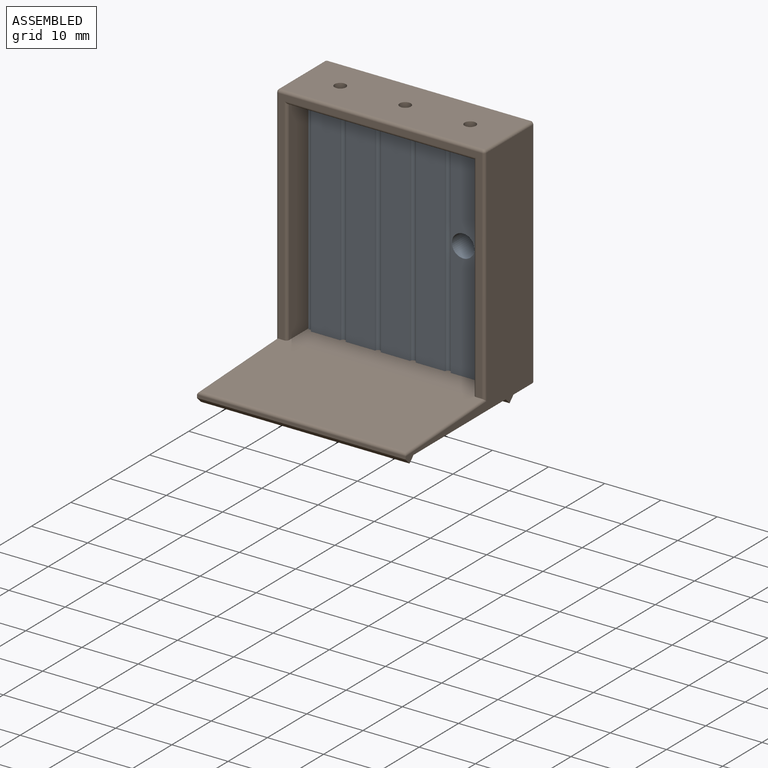
[diagram: assembled view]
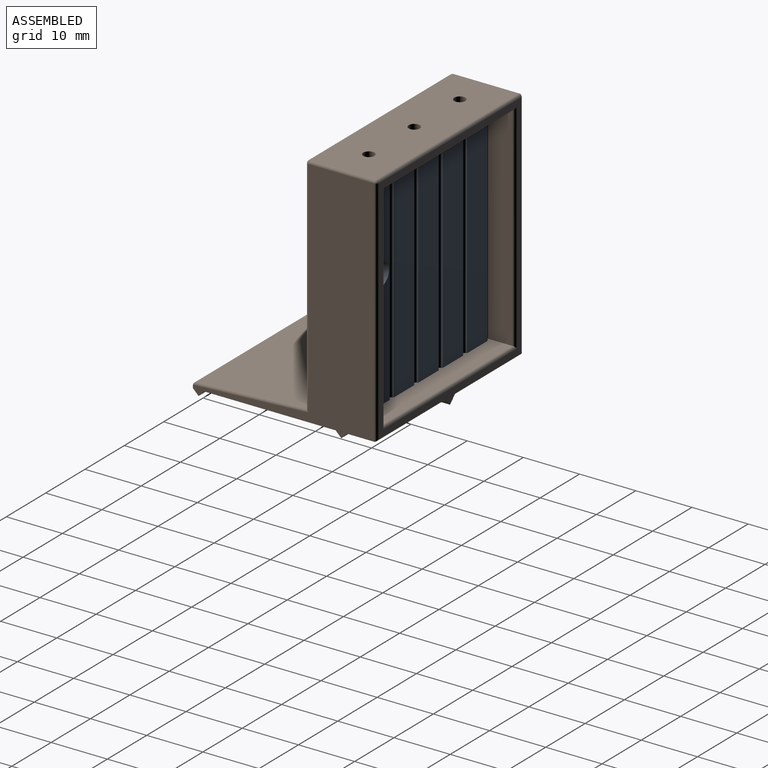
[diagram: assembled view, second angle]
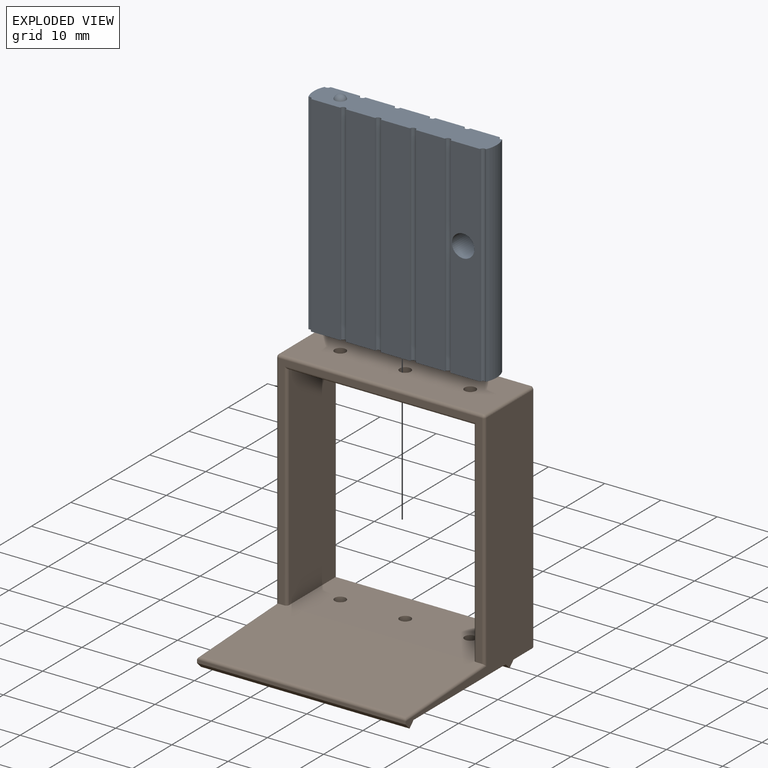
[diagram: exploded view]
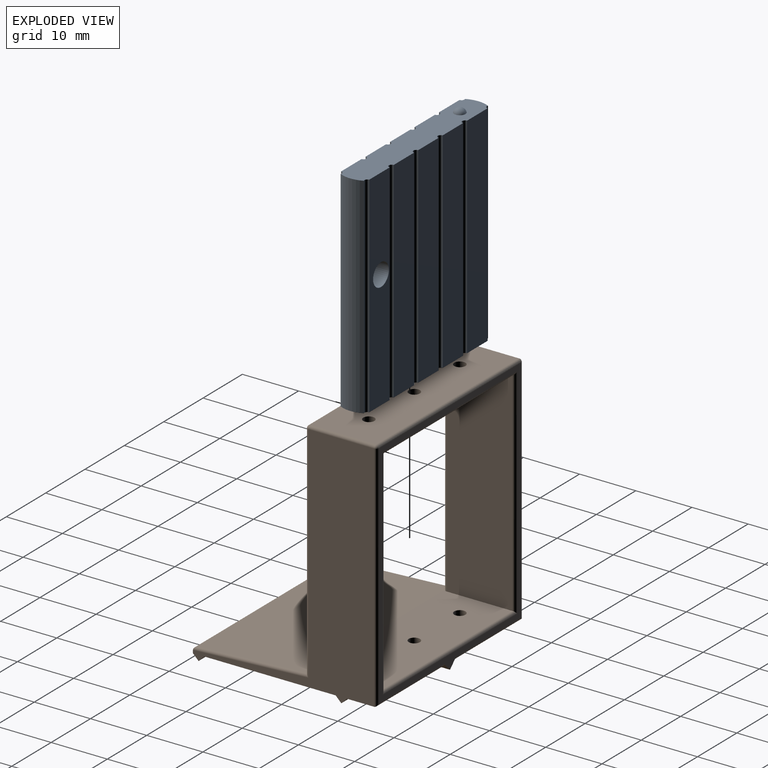
[diagram: exploded view, second angle]
ASSEMBLY  parts=2 mates=2
PART A: 31 faces, bbox 32.5x5x38.9 mm
  f0: plane 32.53x5mm, normal (0,0,1), area 153mm2, adj f1,f2,f3,f4,f5,f6,f7,f8
  f1: plane 37.4x5.22mm, normal (0,1,0), area 182.5mm2, adj f0,f15,f24,f29,f30
  f2: cylinder r=4.7mm len=37.4mm, axis (0,0,-1), area 159.8mm2, adj f0,f15,f23,f30
  f3: plane 37.4x5.22mm, normal (0,1,0), area 195.1mm2, adj f0,f15,f28,f29
  f4: plane 37.4x5.22mm, normal (0,1,0), area 195.1mm2, adj f0,f15,f27,f28
  f5: plane 37.4x5.22mm, normal (0,1,0), area 195.1mm2, adj f0,f15,f26,f27
  f6: plane 37.4x5.22mm, normal (0,1,0), area 195.1mm2, adj f0,f15,f25,f26
  f7: cylinder r=4.7mm len=37.4mm, axis (0,0,-1), area 159.8mm2, adj f0,f15,f18,f25
  f8: plane 37.4x5.22mm, normal (0,-1,0), area 182.5mm2, adj f0,f15,f22,f23,f24
  f9: plane 37.4x5.22mm, normal (0,-1,0), area 195.1mm2, adj f0,f15,f21,f22
  f10: plane 37.4x5.22mm, normal (0,-1,0), area 195.1mm2, adj f0,f15,f20,f21
  f11: plane 37.4x5.22mm, normal (0,-1,0), area 195.1mm2, adj f0,f15,f19,f20
  f12: plane 37.4x5.22mm, normal (0,-1,0), area 195.1mm2, adj f0,f15,f18,f19
  f13: plane 0.06x0.06mm, normal (0,0,1), area 0mm2, adj f14
  f14: torus R=0.03mm, axis (0,0,-1), area 5mm2, adj f0,f13
  f15: plane 32.53x5mm, normal (0,0,-1), area 153mm2, adj f1,f2,f3,f4,f5,f6,f7,f8
  f16: plane 0.06x0.06mm, normal (0,0,-1), area 0mm2, adj f17
  f17: torus R=0.03mm, axis (0,0,1), area 5mm2, adj f15,f16
  f18: cylinder r=0.5mm len=37.4mm, axis (0,0,1), area 38.9mm2, adj f0,f7,f12,f15
  f19: cylinder r=0.5mm len=37.4mm, axis (0,0,1), area 58.7mm2, adj f0,f11,f12,f15
  f20: cylinder r=0.5mm len=37.4mm, axis (0,0,1), area 58.7mm2, adj f0,f10,f11,f15
  f21: cylinder r=0.5mm len=37.4mm, axis (0,0,1), area 58.7mm2, adj f0,f9,f10,f15
  f22: cylinder r=0.5mm len=37.4mm, axis (0,0,1), area 58.7mm2, adj f0,f8,f9,f15
  f23: cylinder r=0.5mm len=37.4mm, axis (0,0,1), area 38.9mm2, adj f0,f2,f8,f15
  f24: cylinder r=2mm len=5mm, axis (0,-1,0), area 62.8mm2, adj f1,f8
  f25: cylinder r=0.5mm len=37.4mm, axis (0,0,1), area 38.9mm2, adj f0,f6,f7,f15
  f26: cylinder r=0.5mm len=37.4mm, axis (0,0,1), area 58.7mm2, adj f0,f5,f6,f15
  f27: cylinder r=0.5mm len=37.4mm, axis (0,0,1), area 58.7mm2, adj f0,f4,f5,f15
  f28: cylinder r=0.5mm len=37.4mm, axis (0,0,1), area 58.7mm2, adj f0,f3,f4,f15
  f29: cylinder r=0.5mm len=37.4mm, axis (0,0,1), area 58.7mm2, adj f0,f1,f3,f15
  f30: cylinder r=0.5mm len=37.4mm, axis (0,0,1), area 38.9mm2, adj f0,f1,f2,f15
PART B: 62 faces, bbox 37.1x32.8x43 mm
  f0: plane 23.4x17.56mm, normal (0,0,-1), area 411mm2, adj f4,f6,f10,f23
  f1: plane 17.56x4.85mm, normal (0,0,-1), area 85.2mm2, adj f2,f10,f24,f43
  f2: plane 18.21x1mm, normal (0,0.71,-0.71), area 24.9mm2, adj f1,f4,f10,f24,f27,f31
  f3: plane 18.21x1mm, normal (0,0.71,-0.71), area 24.9mm2, adj f5,f9,f20,f25,f31,f35
  f4: plane 18.21x1mm, normal (0,-0.71,-0.71), area 24.9mm2, adj f0,f2,f10,f23,f27,f31
  f5: plane 18.21x1mm, normal (0,-0.71,-0.71), area 24.9mm2, adj f3,f8,f20,f22,f31,f35
  f6: plane 18.56x1mm, normal (0,0.71,-0.71), area 25.5mm2, adj f0,f10,f19,f23
  f7: plane 18.56x1mm, normal (0,0.71,-0.71), area 25.5mm2, adj f8,f19,f20,f22
  f8: plane 23.4x17.56mm, normal (0,0,-1), area 411mm2, adj f5,f7,f20,f22
  f9: plane 17.56x4.85mm, normal (0,0,-1), area 85.2mm2, adj f3,f20,f25,f54
  f10: plane 42.5x32.25mm, normal (-1,0,0), area 508.3mm2, adj f0,f1,f2,f4,f6,f17,f19,f38
  f11: plane 39.5x36.13mm, normal (0,-1,0), area 113.1mm2, adj f18,f40,f44,f45,f59,f60,f61
  f12: plane 34.13x12.2mm, normal (0,0,1), area 394.8mm2, adj f13,f18,f21,f28,f32,f36,f56,f59
  f13: plane 38x11.7mm, normal (1,0,0), area 444.6mm2, adj f12,f14,f55,f59
  f14: plane 33.13x11.7mm, normal (0,0,-1), area 378.1mm2, adj f13,f21,f26,f33,f34,f57,f60
  f15: plane 36.13x11.7mm, normal (0,0,1), area 413.2mm2, adj f26,f33,f34,f45,f46,f50,f51
  f16: plane 42.5x36.13mm, normal (0,1,0), area 152.5mm2, adj f24,f25,f43,f47,f51,f53,f54,f55
  f17: plane 37.13x0.52mm, normal (0,-1,0), area 19.5mm2, adj f10,f19,f20,f38,f39,f41
  f18: plane 36.13x19.58mm, normal (0,-0.05,1), area 708mm2, adj f11,f12,f38,f39,f41
  f19: plane 37.13x1mm, normal (0,-0.71,-0.71), area 52.5mm2, adj f6,f7,f10,f17,f20
  f20: plane 42.5x32.25mm, normal (1,0,0), area 508.3mm2, adj f3,f5,f7,f8,f9,f17,f19,f41
  f21: plane 38x11.7mm, normal (-1,0,0), area 444.6mm2, adj f12,f14,f58,f61
  f22: plane 25.05x1mm, normal (0.71,0,-0.71), area 34.4mm2, adj f5,f7,f8,f23,f31
  f23: plane 25.05x1mm, normal (-0.71,0,-0.71), area 34.4mm2, adj f0,f4,f6,f22,f31
  f24: plane 6x1.5mm, normal (-0.71,0,-0.71), area 8.2mm2, adj f1,f2,f16,f25,f31,f43
  f25: plane 6x1.5mm, normal (0.71,0,-0.71), area 8.2mm2, adj f3,f9,f16,f24,f31,f54
  f26: cylinder r=1mm len=2mm, axis (0,0,1), area 12.6mm2, adj f14,f15
  f27: cylinder r=0.5mm len=2mm, axis (0,0,1), area 5.3mm2, adj f2,f4,f29
  f28: cylinder r=1mm len=2mm, axis (0,0,1), area 6.3mm2, adj f12,f29
  f29: plane 2x2mm, normal (0,0,1), area 2.4mm2, adj f27,f28
  f30: plane 2x2mm, normal (0,0,1), area 2.4mm2, adj f31,f32
  f31: cylinder r=0.5mm len=2mm, axis (0,0,1), area 5.7mm2, adj f2,f3,f4,f5,f22,f23,f24,f25
  f32: cylinder r=1mm len=2mm, axis (0,0,1), area 6.3mm2, adj f12,f30
  f33: cylinder r=1mm len=2mm, axis (0,0,1), area 12.6mm2, adj f14,f15
  f34: cylinder r=1mm len=2mm, axis (0,0,1), area 12.6mm2, adj f14,f15
  f35: cylinder r=0.5mm len=2mm, axis (0,0,1), area 5.3mm2, adj f3,f5,f37
  f36: cylinder r=1mm len=2mm, axis (0,0,1), area 6.3mm2, adj f12,f37
  f37: plane 2x2mm, normal (0,0,1), area 2.4mm2, adj f35,f36
  f38: cylinder r=0.5mm len=20.58mm, axis (0,1,0.05), area 15.8mm2, adj f10,f17,f18,f39,f40
  f39: cylinder r=0.5mm len=37.12mm, axis (1,0,0), area 27.9mm2, adj f17,f18,f38,f41
  f40: cylinder r=0.5mm len=39.98mm, axis (0,0,1), area 31.2mm2, adj f10,f11,f38,f42
  f41: cylinder r=0.5mm len=20.58mm, axis (0,1,0.05), area 15.8mm2, adj f17,f18,f20,f39,f44
  f42: sphere r=0.5mm, area 0.4mm2, adj f40,f45,f46
  f43: cylinder r=0.5mm len=17.56mm, axis (1,0,0), area 13.5mm2, adj f1,f16,f24,f47
  f44: cylinder r=0.5mm len=39.98mm, axis (0,0,1), area 31.2mm2, adj f11,f20,f41,f48
  f45: cylinder r=0.5mm len=36.13mm, axis (1,0,0), area 28.4mm2, adj f11,f15,f42,f48
  f46: cylinder r=0.5mm len=11.7mm, axis (0,1,0), area 9.2mm2, adj f10,f15,f42,f49
  f47: cylinder r=0.5mm len=41.5mm, axis (0,0,-1), area 32.5mm2, adj f10,f16,f43,f49
  f48: sphere r=0.5mm, area 0.4mm2, adj f44,f45,f50
  f49: sphere r=0.5mm, area 0.4mm2, adj f46,f47,f51
  f50: cylinder r=0.5mm len=11.7mm, axis (0,1,0), area 9.2mm2, adj f15,f20,f48,f52
  f51: cylinder r=0.5mm len=36.13mm, axis (-1,0,0), area 28.4mm2, adj f15,f16,f49,f52
  f52: sphere r=0.5mm, area 0.4mm2, adj f50,f51,f53
  f53: cylinder r=0.5mm len=41.5mm, axis (0,0,-1), area 32.5mm2, adj f16,f20,f52,f54
  f54: cylinder r=0.5mm len=17.56mm, axis (1,0,0), area 13.5mm2, adj f9,f16,f25,f53
  f55: cylinder r=0.5mm len=39mm, axis (0,0,1), area 30.1mm2, adj f13,f16,f56,f57
  f56: cylinder r=0.5mm len=34.13mm, axis (-1,0,0), area 26.3mm2, adj f12,f16,f55,f58
  f57: cylinder r=0.5mm len=34.13mm, axis (1,0,0), area 26.3mm2, adj f14,f16,f55,f58
  f58: cylinder r=0.5mm len=39mm, axis (0,0,1), area 30.1mm2, adj f16,f21,f56,f57
  f59: cylinder r=0.5mm len=38.5mm, axis (0,0,-1), area 30mm2, adj f11,f12,f13,f60
  f60: cylinder r=0.5mm len=34.13mm, axis (-1,0,0), area 26.3mm2, adj f11,f14,f59,f61
  f61: cylinder r=0.5mm len=38.5mm, axis (0,0,-1), area 30mm2, adj f11,f12,f21,f60
PLACE A t=(-15.43,10.61,-9.77)mm
PLACE B t=(-52.16,14.46,-9)mm
MATE cylindrical B.f26 <-> A.f7  axis (0,0,1) through (-63.72,8.11,33)mm
MATE planar A.f0 <-> B.f31  axis (0,0,1) through (-51.92,8.11,30.9)mm
